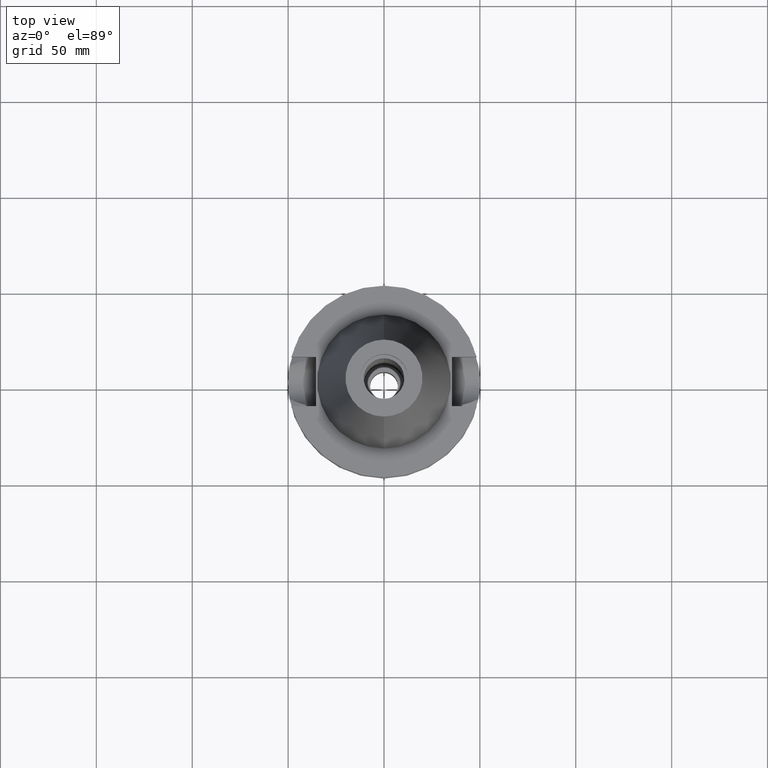
[diagram: clean part render]
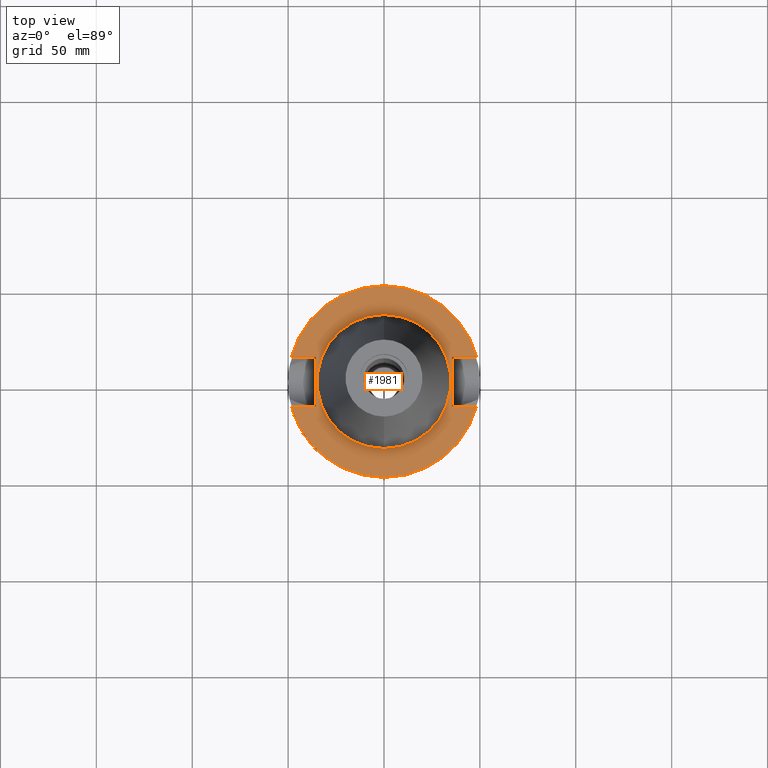
[diagram: same view with one face highlighted and labeled with its STEP entity id]
A machine part, top view. The second image highlights one B-rep face of the part: STEP entity #1981.
In plain terms, the highlighted planar face has unit normal (0, 0, -1).
Its self-contained STEP definition (entity closure, byte-faithful):
#733=DIRECTION('',(1.E0,0.E0,0.E0));
#734=VECTOR('',#733,1.292057015392E1);
#735=CARTESIAN_POINT('',(3.54E1,1.285E1,-1.5E0));
#736=LINE('',#735,#734);
#780=DIRECTION('',(0.E0,1.E0,0.E0));
#781=VECTOR('',#780,2.57E1);
#782=CARTESIAN_POINT('',(-3.54E1,-1.285E1,-1.5E0));
#783=LINE('',#782,#781);
#787=DIRECTION('',(-1.E0,0.E0,0.E0));
#788=VECTOR('',#787,1.292057015392E1);
#789=CARTESIAN_POINT('',(-3.54E1,1.285E1,-1.5E0));
#790=LINE('',#789,#788);
#794=CARTESIAN_POINT('',(0.E0,2.688222188808E-14,-1.5E0));
#795=DIRECTION('',(0.E0,0.E0,-1.E0));
#796=DIRECTION('',(-9.664114030784E-1,2.57E-1,0.E0));
#797=AXIS2_PLACEMENT_3D('',#794,#795,#796);
#802=CARTESIAN_POINT('',(0.E0,2.688222188808E-14,-1.5E0));
#803=DIRECTION('',(0.E0,0.E0,-1.E0));
#804=DIRECTION('',(0.E0,1.E0,0.E0));
#805=AXIS2_PLACEMENT_3D('',#802,#803,#804);
#810=DIRECTION('',(0.E0,-1.E0,0.E0));
#811=VECTOR('',#810,2.57E1);
#812=CARTESIAN_POINT('',(3.54E1,1.285E1,-1.5E0));
#813=LINE('',#812,#811);
#817=DIRECTION('',(1.E0,0.E0,0.E0));
#818=VECTOR('',#817,1.292057015392E1);
#819=CARTESIAN_POINT('',(3.54E1,-1.285E1,-1.5E0));
#820=LINE('',#819,#818);
#824=CARTESIAN_POINT('',(0.E0,2.688222188808E-14,-1.5E0));
#825=DIRECTION('',(0.E0,0.E0,-1.E0));
#826=DIRECTION('',(9.664114030784E-1,-2.57E-1,0.E0));
#827=AXIS2_PLACEMENT_3D('',#824,#825,#826);
#832=CARTESIAN_POINT('',(0.E0,2.688222188808E-14,-1.5E0));
#833=DIRECTION('',(0.E0,0.E0,-1.E0));
#834=DIRECTION('',(0.E0,-1.E0,0.E0));
#835=AXIS2_PLACEMENT_3D('',#832,#833,#834);
#840=CARTESIAN_POINT('',(0.E0,2.688222188808E-14,-1.5E0));
#841=DIRECTION('',(0.E0,0.E0,1.E0));
#842=DIRECTION('',(0.E0,-1.E0,0.E0));
#843=AXIS2_PLACEMENT_3D('',#840,#841,#842);
#848=CARTESIAN_POINT('',(0.E0,2.688222188808E-14,-1.5E0));
#849=DIRECTION('',(0.E0,0.E0,1.E0));
#850=DIRECTION('',(0.E0,1.E0,0.E0));
#851=AXIS2_PLACEMENT_3D('',#848,#849,#850);
#886=DIRECTION('',(-1.E0,0.E0,0.E0));
#887=VECTOR('',#886,1.292057015392E1);
#888=CARTESIAN_POINT('',(-3.54E1,-1.285E1,-1.5E0));
#889=LINE('',#888,#887);
#1256=CARTESIAN_POINT('',(-3.54E1,-1.285E1,-1.5E0));
#1257=VERTEX_POINT('',#1256);
#1258=CARTESIAN_POINT('',(-4.832057015392E1,-1.285E1,-1.5E0));
#1259=VERTEX_POINT('',#1258);
#1262=CARTESIAN_POINT('',(-3.54E1,1.285E1,-1.5E0));
#1263=VERTEX_POINT('',#1262);
#1264=CARTESIAN_POINT('',(-4.832057015392E1,1.285E1,-1.5E0));
#1265=VERTEX_POINT('',#1264);
#1266=CARTESIAN_POINT('',(-1.065814103640E-14,5.E1,-1.5E0));
#1267=CARTESIAN_POINT('',(4.832057015392E1,1.285E1,-1.5E0));
#1268=VERTEX_POINT('',#1266);
#1269=VERTEX_POINT('',#1267);
#1270=CARTESIAN_POINT('',(3.54E1,1.285E1,-1.5E0));
#1271=VERTEX_POINT('',#1270);
#1272=CARTESIAN_POINT('',(3.54E1,-1.285E1,-1.5E0));
#1273=VERTEX_POINT('',#1272);
#1274=CARTESIAN_POINT('',(4.832057015392E1,-1.285E1,-1.5E0));
#1275=VERTEX_POINT('',#1274);
#1276=CARTESIAN_POINT('',(1.065814103640E-14,-5.E1,-1.5E0));
#1277=VERTEX_POINT('',#1276);
#1278=CARTESIAN_POINT('',(0.E0,-3.4925E1,-1.5E0));
#1279=CARTESIAN_POINT('',(0.E0,3.4925E1,-1.5E0));
#1280=VERTEX_POINT('',#1278);
#1281=VERTEX_POINT('',#1279);
#1950=CARTESIAN_POINT('',(0.E0,1.206277097160E-14,-1.5E0));
#1951=DIRECTION('',(0.E0,0.E0,-1.E0));
#1952=DIRECTION('',(0.E0,-1.E0,0.E0));
#1953=AXIS2_PLACEMENT_3D('',#1950,#1951,#1952);
#1954=PLANE('',#1953);
#1956=ORIENTED_EDGE('',*,*,#1955,.T.);
#1958=ORIENTED_EDGE('',*,*,#1957,.T.);
#1960=ORIENTED_EDGE('',*,*,#1959,.T.);
#1962=ORIENTED_EDGE('',*,*,#1961,.T.);
#1963=ORIENTED_EDGE('',*,*,#1926,.F.);
#1964=ORIENTED_EDGE('',*,*,#1940,.T.);
#1966=ORIENTED_EDGE('',*,*,#1965,.T.);
#1968=ORIENTED_EDGE('',*,*,#1967,.T.);
#1970=ORIENTED_EDGE('',*,*,#1969,.T.);
#1972=ORIENTED_EDGE('',*,*,#1971,.F.);
#1973=EDGE_LOOP('',(#1956,#1958,#1960,#1962,#1963,#1964,#1966,#1968,#1970,
#1972));
#1974=FACE_OUTER_BOUND('',#1973,.F.);
#1976=ORIENTED_EDGE('',*,*,#1975,.T.);
#1978=ORIENTED_EDGE('',*,*,#1977,.T.);
#1979=EDGE_LOOP('',(#1976,#1978));
#1980=FACE_BOUND('',#1979,.F.);
#798=CIRCLE('',#797,5.E1);
#806=CIRCLE('',#805,5.E1);
#828=CIRCLE('',#827,5.E1);
#836=CIRCLE('',#835,5.E1);
#844=CIRCLE('',#843,3.4925E1);
#852=CIRCLE('',#851,3.4925E1);
#1926=EDGE_CURVE('',#1271,#1269,#736,.T.);
#1940=EDGE_CURVE('',#1271,#1273,#813,.T.);
#1955=EDGE_CURVE('',#1257,#1263,#783,.T.);
#1957=EDGE_CURVE('',#1263,#1265,#790,.T.);
#1959=EDGE_CURVE('',#1265,#1268,#798,.T.);
#1961=EDGE_CURVE('',#1268,#1269,#806,.T.);
#1965=EDGE_CURVE('',#1273,#1275,#820,.T.);
#1967=EDGE_CURVE('',#1275,#1277,#828,.T.);
#1969=EDGE_CURVE('',#1277,#1259,#836,.T.);
#1971=EDGE_CURVE('',#1257,#1259,#889,.T.);
#1975=EDGE_CURVE('',#1280,#1281,#844,.T.);
#1977=EDGE_CURVE('',#1281,#1280,#852,.T.);
#1981=ADVANCED_FACE('',(#1974,#1980),#1954,.F.);